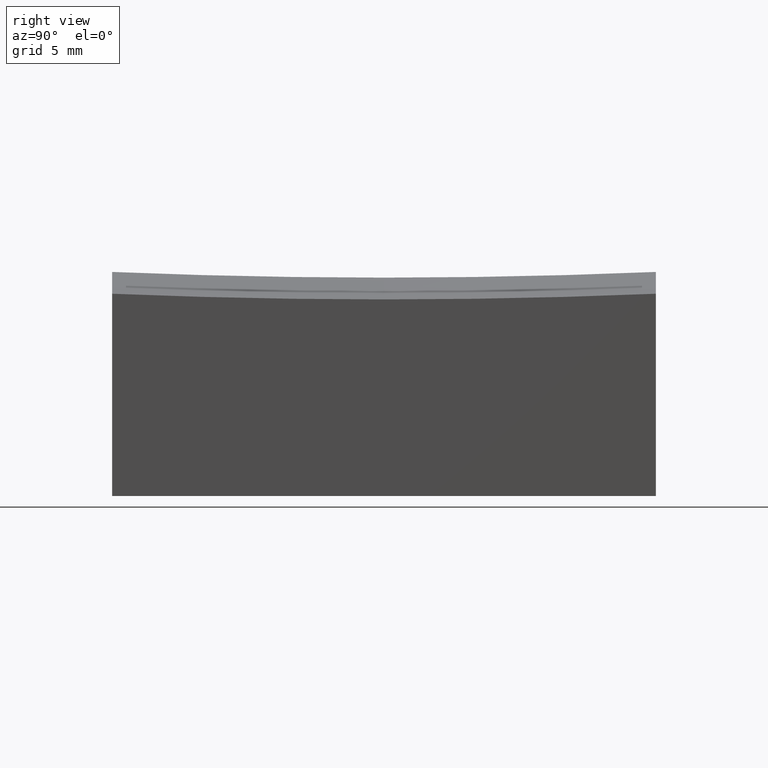
[diagram: clean part render]
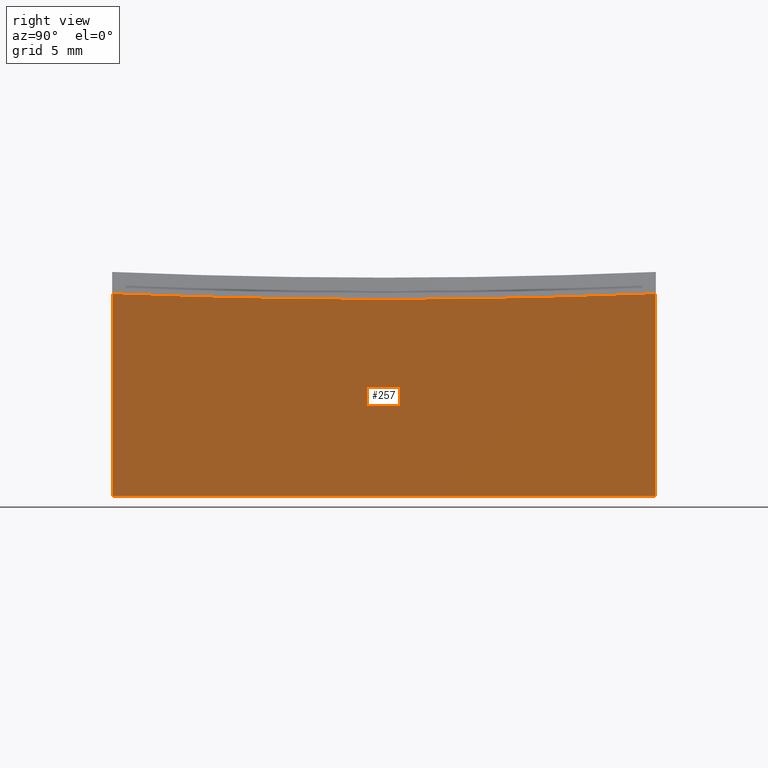
[diagram: same view with one face highlighted and labeled with its STEP entity id]
A machine part, right view. The second image highlights one B-rep face of the part: STEP entity #257.
In plain terms, the highlighted planar face has unit normal (-1, 0, 0).
Its self-contained STEP definition (entity closure, byte-faithful):
#8 = DIRECTION ( 'NONE',  ( -0.000000000000000000, -0.000000000000000000, -1.000000000000000000 ) ) ;
#13 = DIRECTION ( 'NONE',  ( -1.000000000000000000, 0.000000000000000000, 0.000000000000000000 ) ) ;
#21 = EDGE_CURVE ( 'NONE', #220, #133, #186, .T. ) ;
#23 = ORIENTED_EDGE ( 'NONE', *, *, #39, .F. ) ;
#27 = LINE ( 'NONE', #246, #130 ) ;
#39 = EDGE_CURVE ( 'NONE', #218, #217, #222, .T. ) ;
#40 = EDGE_CURVE ( 'NONE', #118, #217, #98, .T. ) ;
#54 = CARTESIAN_POINT ( 'NONE',  ( 10.00000000000000178, -12.50000000000000000, -10.00000000000000000 ) ) ;
#66 = EDGE_LOOP ( 'NONE', ( #23, #255, #157, #71, #232 ) ) ;
#71 = ORIENTED_EDGE ( 'NONE', *, *, #85, .T. ) ;
#82 = FACE_OUTER_BOUND ( 'NONE', #66, .T. ) ;
#85 = EDGE_CURVE ( 'NONE', #133, #118, #27, .T. ) ;
#96 = CARTESIAN_POINT ( 'NONE',  ( 10.00000000000000178, 12.50000000000000000, 10.00000000000000000 ) ) ;
#97 = VECTOR ( 'NONE', #8, 1000.000000000000000 ) ;
#98 = LINE ( 'NONE', #200, #249 ) ;
#101 = DIRECTION ( 'NONE',  ( -0.000000000000000000, -0.000000000000000000, -1.000000000000000000 ) ) ;
#103 = AXIS2_PLACEMENT_3D ( 'NONE', #206, #13, #139 ) ;
#105 = CARTESIAN_POINT ( 'NONE',  ( 10.00000000000000178, 0.000000000000000000, 299.0000000000000000 ) ) ;
#106 = CARTESIAN_POINT ( 'NONE',  ( 10.00000000000000178, 12.50000000000000000, -0.6977644227597612492 ) ) ;
#118 = VERTEX_POINT ( 'NONE', #54 ) ;
#130 = VECTOR ( 'NONE', #101, 1000.000000000000000 ) ;
#133 = VERTEX_POINT ( 'NONE', #159 ) ;
#139 = DIRECTION ( 'NONE',  ( 0.000000000000000000, 0.000000000000000000, 1.000000000000000000 ) ) ;
#147 = AXIS2_PLACEMENT_3D ( 'NONE', #105, #184, #203 ) ;
#155 = DIRECTION ( 'NONE',  ( -1.000000000000000000, 0.000000000000000000, 0.000000000000000000 ) ) ;
#157 = ORIENTED_EDGE ( 'NONE', *, *, #21, .T. ) ;
#159 = CARTESIAN_POINT ( 'NONE',  ( 10.00000000000000178, -12.50000000000000000, -0.6977644227598167603 ) ) ;
#162 = AXIS2_PLACEMENT_3D ( 'NONE', #258, #155, #204 ) ;
#183 = CARTESIAN_POINT ( 'NONE',  ( 10.00000000000000178, 0.000000000000000000, -0.9583304394129021908 ) ) ;
#184 = DIRECTION ( 'NONE',  ( -1.000000000000000000, 0.000000000000000000, 0.000000000000000000 ) ) ;
#186 = CIRCLE ( 'NONE', #162, 299.9583304394128618 ) ;
#200 = CARTESIAN_POINT ( 'NONE',  ( 10.00000000000000178, -12.50000000000000000, -10.00000000000000000 ) ) ;
#203 = DIRECTION ( 'NONE',  ( 0.000000000000000000, 0.000000000000000000, 1.000000000000000000 ) ) ;
#204 = DIRECTION ( 'NONE',  ( 0.000000000000000000, 0.000000000000000000, 1.000000000000000000 ) ) ;
#206 = CARTESIAN_POINT ( 'NONE',  ( 10.00000000000000178, -12.50000000000000000, 10.00000000000000000 ) ) ;
#217 = VERTEX_POINT ( 'NONE', #268 ) ;
#218 = VERTEX_POINT ( 'NONE', #106 ) ;
#220 = VERTEX_POINT ( 'NONE', #183 ) ;
#222 = LINE ( 'NONE', #96, #97 ) ;
#223 = DIRECTION ( 'NONE',  ( 0.000000000000000000, 1.000000000000000000, 0.000000000000000000 ) ) ;
#230 = CIRCLE ( 'NONE', #147, 299.9583304394128618 ) ;
#232 = ORIENTED_EDGE ( 'NONE', *, *, #40, .T. ) ;
#246 = CARTESIAN_POINT ( 'NONE',  ( 10.00000000000000178, -12.50000000000000000, 10.00000000000000000 ) ) ;
#249 = VECTOR ( 'NONE', #223, 1000.000000000000000 ) ;
#255 = ORIENTED_EDGE ( 'NONE', *, *, #275, .T. ) ;
#257 = ADVANCED_FACE ( 'NONE', ( #82 ), #269, .F. ) ;
#258 = CARTESIAN_POINT ( 'NONE',  ( 10.00000000000000178, 0.000000000000000000, 299.0000000000000000 ) ) ;
#268 = CARTESIAN_POINT ( 'NONE',  ( 10.00000000000000178, 12.50000000000000000, -10.00000000000000000 ) ) ;
#269 = PLANE ( 'NONE',  #103 ) ;
#275 = EDGE_CURVE ( 'NONE', #218, #220, #230, .T. ) ;